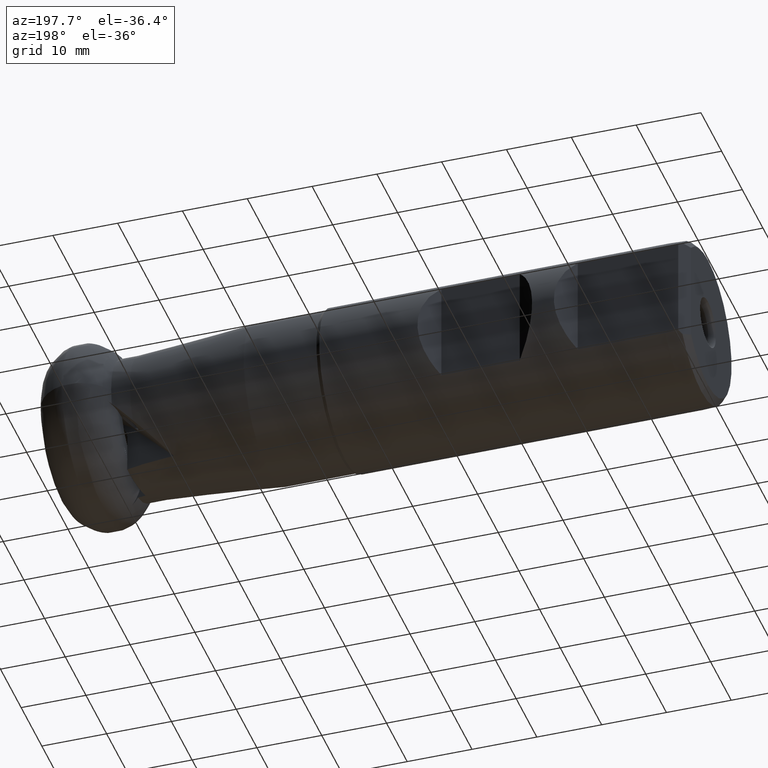
[diagram: clean part render]
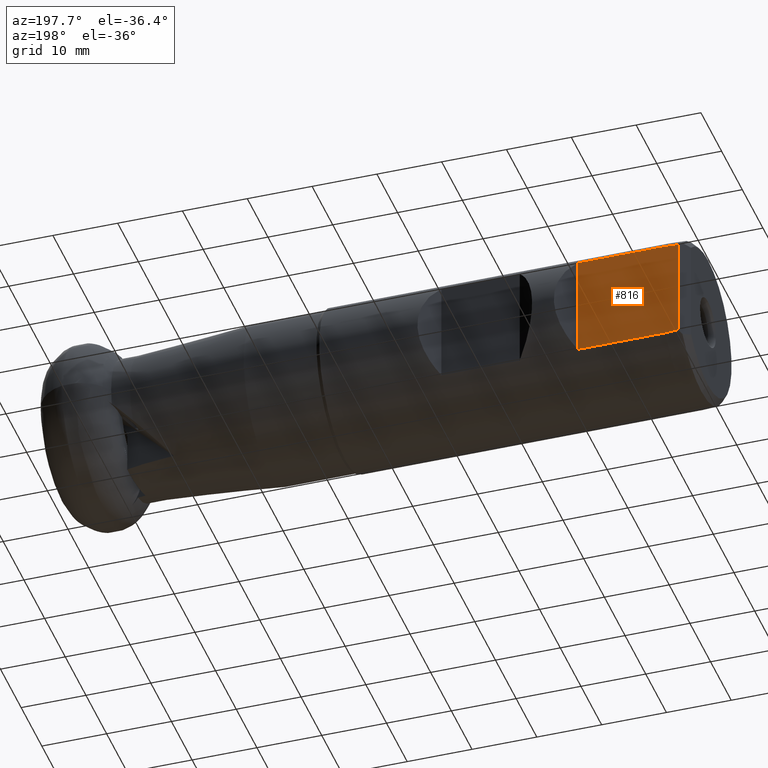
[diagram: same view with one face highlighted and labeled with its STEP entity id]
A machine part, auxiliary view. The second image highlights one B-rep face of the part: STEP entity #816.
In plain terms, the highlighted planar face has unit normal (0, -1, 0).
Its self-contained STEP definition (entity closure, byte-faithful):
#372 = CARTESIAN_POINT ( 'NONE',  ( -95.25000000000000000, 9.700000000000017100, 7.884161337770768400 ) ) ;
#431 = CARTESIAN_POINT ( 'NONE',  ( -81.75000000000000000, 9.700000000000011700, -7.884161337770770200 ) ) ;
#695 = CARTESIAN_POINT ( 'NONE',  ( -95.25000000000000000, 9.700000000000020600, -7.884161337770772000 ) ) ;
#701 = CARTESIAN_POINT ( 'NONE',  ( -97.25000000000000000, 9.700000000000009900, 7.756700329392636200 ) ) ;
#816 = ADVANCED_FACE ( 'NONE', ( #3282 ), #2636, .F. ) ;
#961 = VERTEX_POINT ( 'NONE', #431 ) ;
#1022 = VECTOR ( 'NONE', #4139, 1000.000000000000000 ) ;
#1046 = EDGE_CURVE ( 'NONE', #961, #2322, #2644, .T. ) ;
#1203 = CARTESIAN_POINT ( 'NONE',  ( -97.25000000000000000, 9.700000000000009900, -25.00000000000000000 ) ) ;
#1228 = CARTESIAN_POINT ( 'NONE',  ( -81.75000000000000000, 9.700000000000011700, -25.00000000000000000 ) ) ;
#1306 = CARTESIAN_POINT ( 'NONE',  ( -81.75000000000000000, 9.700000000000011700, 7.884161337770770200 ) ) ;
#1309 = CARTESIAN_POINT ( 'NONE',  ( -1.085601143030649500E-015, 9.700000000000020600, -7.884161337770772000 ) ) ;
#1340 = CARTESIAN_POINT ( 'NONE',  ( -96.58334740627661600, 9.700000000000009900, 7.799397996505892800 ) ) ;
#1372 = ORIENTED_EDGE ( 'NONE', *, *, #3450, .T. ) ;
#1509 = CARTESIAN_POINT ( 'NONE',  ( -95.25000000000000000, 9.700000000000017100, 7.884161337770768400 ) ) ;
#1537 = VERTEX_POINT ( 'NONE', #3972 ) ;
#1599 = VECTOR ( 'NONE', #3208, 1000.000000000000000 ) ;
#1813 = VERTEX_POINT ( 'NONE', #695 ) ;
#1873 = ORIENTED_EDGE ( 'NONE', *, *, #2092, .T. ) ;
#1890 = B_SPLINE_CURVE_WITH_KNOTS ( 'NONE', 3,
 ( #3111, #2451, #4158, #2442 ),
 .UNSPECIFIED., .F., .F.,
 ( 4, 4 ),
 ( 0.02305638270487965800, 0.02506043153770305000 ),
 .UNSPECIFIED. ) ;
#1969 = VERTEX_POINT ( 'NONE', #1509 ) ;
#2028 = EDGE_CURVE ( 'NONE', #1969, #2322, #3485, .T. ) ;
#2092 = EDGE_CURVE ( 'NONE', #1537, #2411, #3379, .T. ) ;
#2170 = CARTESIAN_POINT ( 'NONE',  ( -1.085601143030649500E-015, 9.700000000000020600, 7.884161337770772000 ) ) ;
#2260 = CARTESIAN_POINT ( 'NONE',  ( -81.75000000000000000, 9.700000000000011700, -25.00000000000000000 ) ) ;
#2322 = VERTEX_POINT ( 'NONE', #1306 ) ;
#2411 = VERTEX_POINT ( 'NONE', #701 ) ;
#2442 = CARTESIAN_POINT ( 'NONE',  ( -97.25000000000000000, 9.700000000000009900, -7.756700329392626400 ) ) ;
#2451 = CARTESIAN_POINT ( 'NONE',  ( -95.91667970875816700, 9.700000000000009900, -7.841881653211036300 ) ) ;
#2475 = ORIENTED_EDGE ( 'NONE', *, *, #1046, .F. ) ;
#2586 = DIRECTION ( 'NONE',  ( 1.119176436114069100E-016, -1.000000000000000000, 0.0000000000000000000 ) ) ;
#2636 = PLANE ( 'NONE',  #2888 ) ;
#2644 = LINE ( 'NONE', #1228, #1022 ) ;
#2651 = CARTESIAN_POINT ( 'NONE',  ( -97.25000000000000000, 9.700000000000009900, 7.756700329392636200 ) ) ;
#2733 = EDGE_LOOP ( 'NONE', ( #1372, #1873, #2780, #3824, #2475, #2989 ) ) ;
#2780 = ORIENTED_EDGE ( 'NONE', *, *, #3904, .T. ) ;
#2816 = DIRECTION ( 'NONE',  ( -0.0000000000000000000, -0.0000000000000000000, 1.000000000000000000 ) ) ;
#2888 = AXIS2_PLACEMENT_3D ( 'NONE', #2260, #2586, #3909 ) ;
#2989 = ORIENTED_EDGE ( 'NONE', *, *, #4118, .T. ) ;
#3111 = CARTESIAN_POINT ( 'NONE',  ( -95.25000000000000000, 9.700000000000020600, -7.884161337770772000 ) ) ;
#3208 = DIRECTION ( 'NONE',  ( 1.000000000000000000, -0.0000000000000000000, -0.0000000000000000000 ) ) ;
#3265 = VECTOR ( 'NONE', #4237, 1000.000000000000000 ) ;
#3282 = FACE_OUTER_BOUND ( 'NONE', #2733, .T. ) ;
#3379 = LINE ( 'NONE', #1203, #4164 ) ;
#3450 = EDGE_CURVE ( 'NONE', #1813, #1537, #1890, .T. ) ;
#3485 = LINE ( 'NONE', #2170, #1599 ) ;
#3522 = LINE ( 'NONE', #1309, #3265 ) ;
#3635 = CARTESIAN_POINT ( 'NONE',  ( -95.91667970875816700, 9.700000000000009900, 7.841881653211037100 ) ) ;
#3738 = B_SPLINE_CURVE_WITH_KNOTS ( 'NONE', 3,
 ( #2651, #1340, #3635, #372 ),
 .UNSPECIFIED., .F., .F.,
 ( 4, 4 ),
 ( 0.02287819575653230600, 0.02488223251606465300 ),
 .UNSPECIFIED. ) ;
#3824 = ORIENTED_EDGE ( 'NONE', *, *, #2028, .T. ) ;
#3904 = EDGE_CURVE ( 'NONE', #2411, #1969, #3738, .T. ) ;
#3909 = DIRECTION ( 'NONE',  ( 1.000000000000000000, 1.119176436114069100E-016, 0.0000000000000000000 ) ) ;
#3972 = CARTESIAN_POINT ( 'NONE',  ( -97.25000000000000000, 9.700000000000009900, -7.756700329392626400 ) ) ;
#4118 = EDGE_CURVE ( 'NONE', #961, #1813, #3522, .T. ) ;
#4139 = DIRECTION ( 'NONE',  ( -0.0000000000000000000, -0.0000000000000000000, 1.000000000000000000 ) ) ;
#4158 = CARTESIAN_POINT ( 'NONE',  ( -96.58334740627661600, 9.700000000000009900, -7.799397996505892800 ) ) ;
#4164 = VECTOR ( 'NONE', #2816, 1000.000000000000000 ) ;
#4237 = DIRECTION ( 'NONE',  ( -1.000000000000000000, 0.0000000000000000000, 0.0000000000000000000 ) ) ;